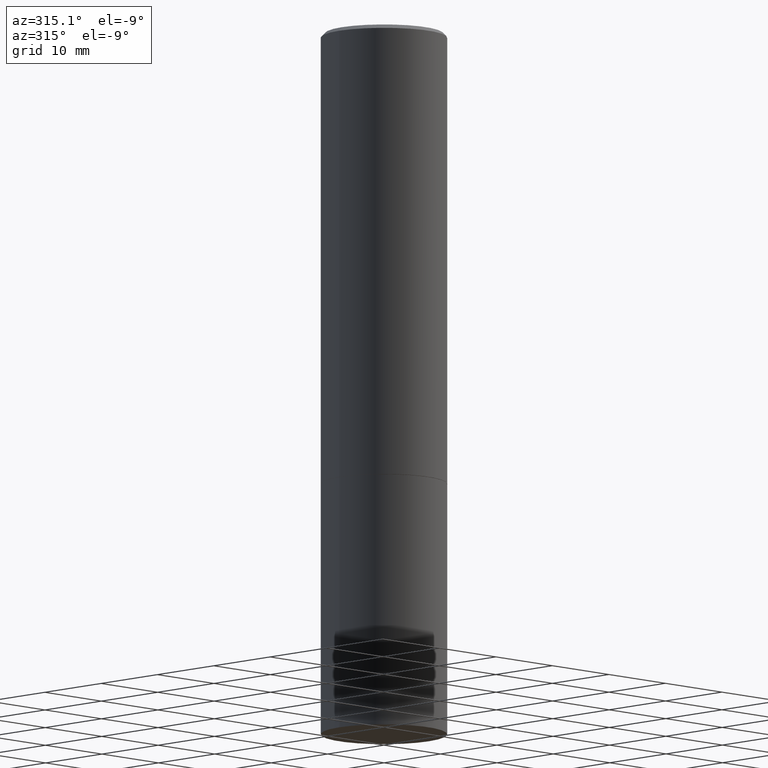
[diagram: clean part render]
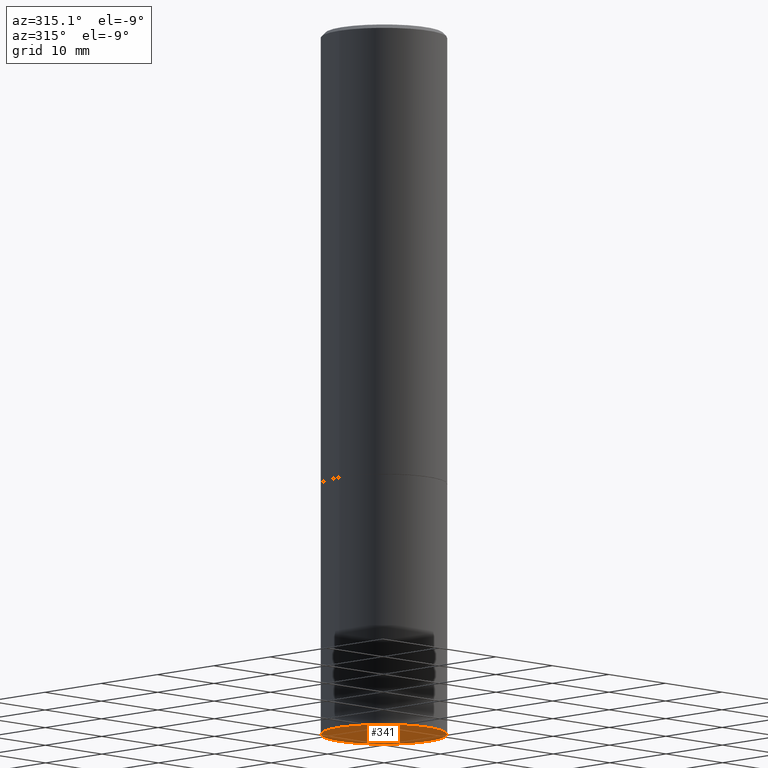
[diagram: same view with one face highlighted and labeled with its STEP entity id]
A machine part, auxiliary view. The second image highlights one B-rep face of the part: STEP entity #341.
In plain terms, the highlighted planar face has unit normal (0, -0, -1).
Its self-contained STEP definition (entity closure, byte-faithful):
#4 = VERTEX_POINT ( 'NONE', #323 ) ;
#6 = EDGE_CURVE ( 'NONE', #4, #84, #361, .T. ) ;
#9 = CARTESIAN_POINT ( 'NONE',  ( 0.3125000000000000000, -1.440236052272796769E-14, -3.500000000000000000 ) ) ;
#47 = DIRECTION ( 'NONE',  ( 1.000000000000000000, -6.982962677686269077E-15, 0.000000000000000000 ) ) ;
#84 = VERTEX_POINT ( 'NONE', #9 ) ;
#106 = DIRECTION ( 'NONE',  ( -1.000000000000000000, 6.982962677686265922E-15, -4.876176775795935793E-29 ) ) ;
#138 = AXIS2_PLACEMENT_3D ( 'NONE', #260, #162, #47 ) ;
#162 = DIRECTION ( 'NONE',  ( -2.445468806185136597E-29, 3.491481338843145583E-15, 1.000000000000000000 ) ) ;
#173 = CARTESIAN_POINT ( 'NONE',  ( 8.559140821647976968E-29, -1.222018468595100934E-14, -3.500000000000000000 ) ) ;
#177 = CIRCLE ( 'NONE', #138, 0.3125000000000000000 ) ;
#189 = AXIS2_PLACEMENT_3D ( 'NONE', #359, #231, #106 ) ;
#204 = ORIENTED_EDGE ( 'NONE', *, *, #6, .F. ) ;
#205 = ORIENTED_EDGE ( 'NONE', *, *, #277, .F. ) ;
#210 = EDGE_LOOP ( 'NONE', ( #205, #204 ) ) ;
#225 = PLANE ( 'NONE',  #189 ) ;
#231 = DIRECTION ( 'NONE',  ( 2.438088387897960049E-29, -3.491481338843145188E-15, -1.000000000000000000 ) ) ;
#243 = DIRECTION ( 'NONE',  ( 1.000000000000000000, -6.982962677686269077E-15, 0.000000000000000000 ) ) ;
#255 = FACE_OUTER_BOUND ( 'NONE', #210, .T. ) ;
#260 = CARTESIAN_POINT ( 'NONE',  ( 8.559140821647976968E-29, -1.222018468595100934E-14, -3.500000000000000000 ) ) ;
#268 = DIRECTION ( 'NONE',  ( -2.445468806185136597E-29, 3.491481338843145583E-15, 1.000000000000000000 ) ) ;
#270 = AXIS2_PLACEMENT_3D ( 'NONE', #173, #268, #243 ) ;
#277 = EDGE_CURVE ( 'NONE', #84, #4, #177, .T. ) ;
#323 = CARTESIAN_POINT ( 'NONE',  ( -0.3125000000000000000, -7.817562799923730025E-15, -3.500000000000000000 ) ) ;
#341 = ADVANCED_FACE ( 'NONE', ( #255 ), #225, .T. ) ;
#359 = CARTESIAN_POINT ( 'NONE',  ( 2.182175836777043938E-15, 0.3124999999999877875, -3.500000000000000888 ) ) ;
#361 = CIRCLE ( 'NONE', #270, 0.3125000000000000000 ) ;